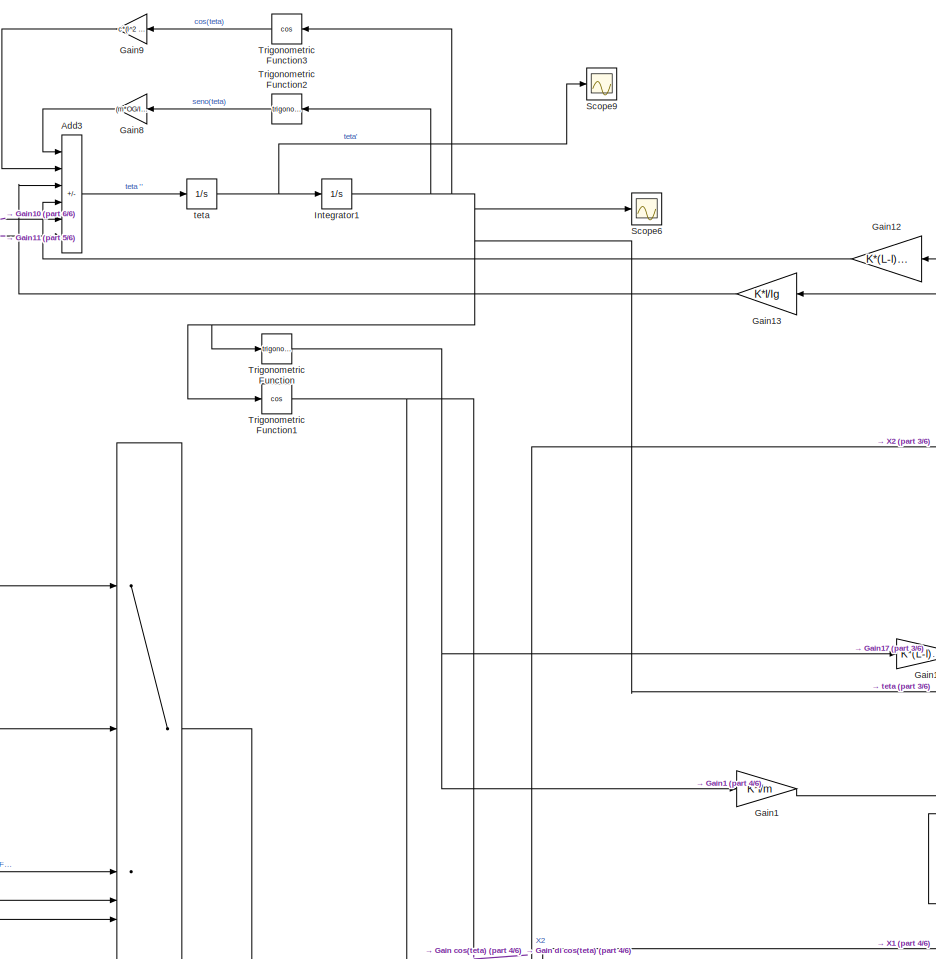
[diagram: root canvas - part 1/6, top center region]
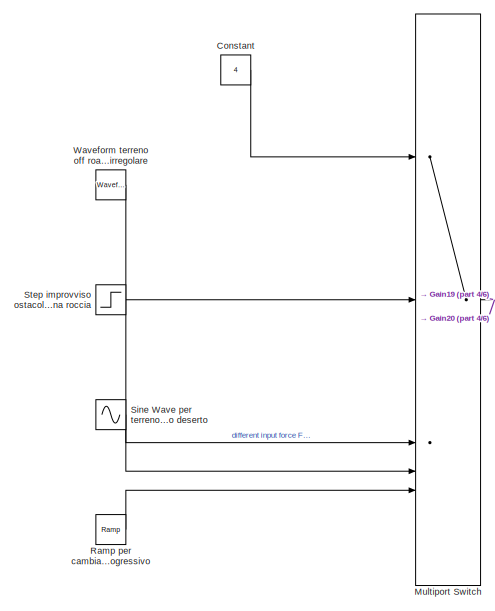
[diagram: root canvas - part 2/6, middle left region]
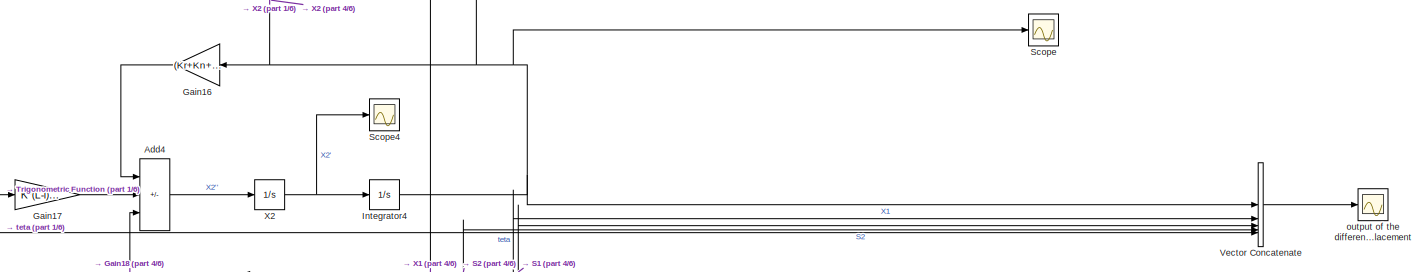
[diagram: root canvas - part 3/6, middle right region]
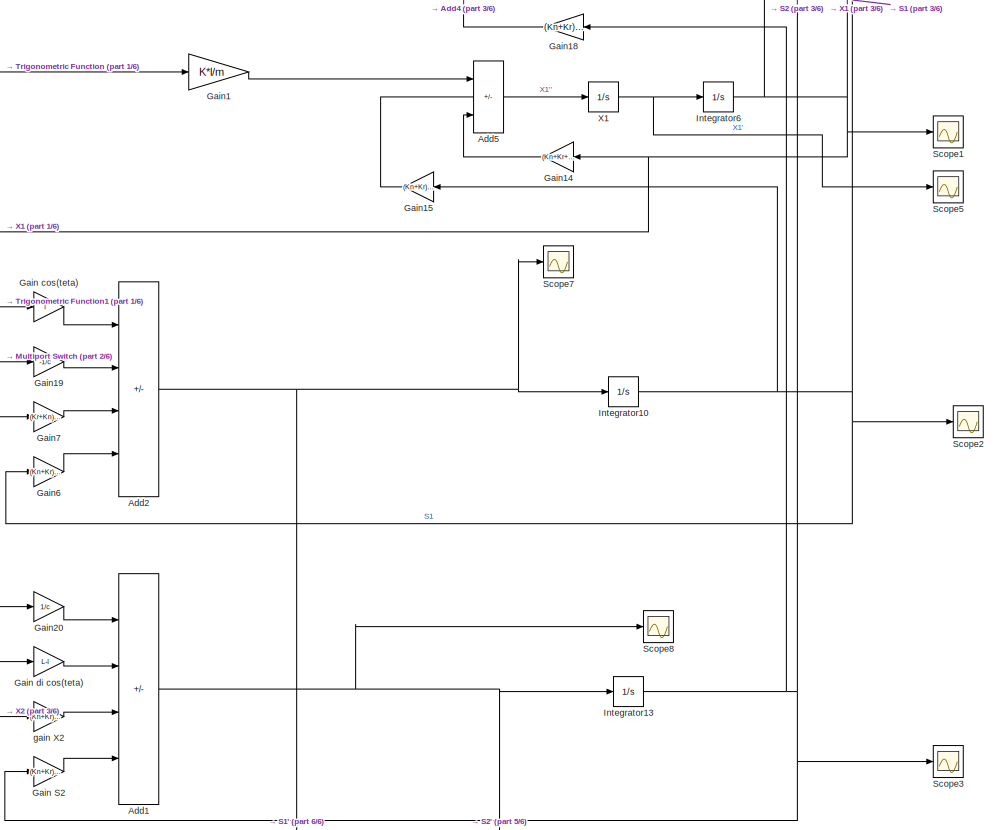
[diagram: root canvas - part 4/6, central region]
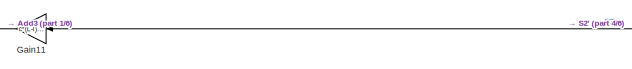
[diagram: root canvas - part 5/6, bottom left region]
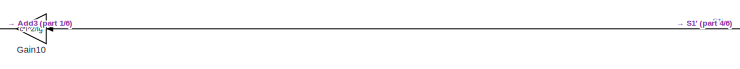
[diagram: root canvas - part 6/6, bottom left region]
MODEL slx_c7bda85f03ab
KIND model
CONFIG AbsTol = auto
CONFIG EnableMultiTasking = off
CONFIG FixedStep = auto
CONFIG MaxStep = auto
CONFIG MinStep = auto
CONFIG RelTol = 1e-10
CONFIG SampleTimeConstraint = Unconstrained
CONFIG SolverName = VariableStepAuto
CONFIG StartTime = 0.0
CONFIG StopTime = 5.0
BLOCK [Sum] Add1
  IconShape = rectangular
  Inputs = +++-
BLOCK [Sum] Add2
  IconShape = rectangular
  Inputs = +++-
BLOCK [Sum] Add3
  IconShape = rectangular
  Inputs = +-++++
BLOCK [Sum] Add4
  IconShape = rectangular
  Inputs = -++
BLOCK [Sum] Add5
  IconShape = rectangular
  Inputs = ++-
BLOCK [Constant] Constant
  Value = 4
BLOCK [Gain] Gain S2
  Gain = (Kn+Kr)/c
BLOCK [Gain] Gain cos(teta)
  Gain = l
BLOCK [Gain] Gain di cos(teta) 
  Gain = L-l
BLOCK [Gain] Gain1
  Gain = K*l/m
BLOCK [Gain] Gain10
  Gain = c*l^2/Ig
BLOCK [Gain] Gain11
  Gain = c*(L-l)^2/Ig
BLOCK [Gain] Gain12
  Gain = K*(L-l)/Ig
BLOCK [Gain] Gain13
  Gain = K*l/Ig
BLOCK [Gain] Gain14
  Gain = (Kn+Kr+K)/m
BLOCK [Gain] Gain15
  Gain = (Kn+Kr)/m
BLOCK [Gain] Gain16
  Gain = (Kr+Kn+K)/m
BLOCK [Gain] Gain17
  Gain = K*(L-l)/m
BLOCK [Gain] Gain18
  Gain = (Kn+Kr)/m
BLOCK [Gain] Gain19
  Gain = -1/c
BLOCK [Gain] Gain20
  Gain = 1/c
BLOCK [Gain] Gain6
  Gain = (Kn+Kr)/c
BLOCK [Gain] Gain7
  Gain = (Kr+Kn)/c
BLOCK [Gain] Gain8
  Gain = (m*OG/Ig) - (K*(L-l)^2/Ig)-(K*l^2/Ig)
BLOCK [Gain] Gain9
  Gain = c*(l^2 +(L-l)^2)/Ig
BLOCK [Integrator] Integrator1
BLOCK [Integrator] Integrator10
BLOCK [Integrator] Integrator13
BLOCK [Integrator] Integrator4
BLOCK [Integrator] Integrator6
BLOCK [MultiPortSwitch] Multiport Switch
  InputSameDT = off
  Inputs = 4
  SaturateOnIntegerOverflow = off
BLOCK [Reference] Ramp per cambiamento di livello terreno progressivo   REF=simulink/Sources/Ramp
  SourceBlock = simulink/Sources/Ramp
  SourceType = Ramp
BLOCK [Scope] Scope
  Floating = off
  NumInputPorts = 1
  ScopeSpecificationString = Simulink.scopes.TimeScopeBlockCfg('CurrentConfiguration', extmgr.ConfigurationSet(extmgr.Configuration('Core','General UI',true),extmgr.Configuration('Core','Source UI',true),extmgr.Configuration('Sources','WiredSimulink',true,'DataLoggingVariableName','ScopeData1','DataLoggingSaveFormat','Array','DataLoggingLimitDataPoints',true,'DataLoggingDecimation','1'),extmgr.Configuration('Visuals','Time Do...<+1675ch>
BLOCK [Scope] Scope1
  Floating = off
  NumInputPorts = 1
  ScopeSpecificationString = Simulink.scopes.TimeScopeBlockCfg('CurrentConfiguration', extmgr.ConfigurationSet(extmgr.Configuration('Core','General UI',true),extmgr.Configuration('Core','Source UI',true),extmgr.Configuration('Sources','WiredSimulink',true,'DataLoggingVariableName','ScopeData2','DataLoggingSaveFormat','Array','DataLoggingLimitDataPoints',true,'DataLoggingDecimation','1'),extmgr.Configuration('Visuals','Time Do...<+1675ch>
BLOCK [Scope] Scope2
  Floating = off
  NumInputPorts = 1
  ScopeSpecificationString = Simulink.scopes.TimeScopeBlockCfg('CurrentConfiguration', extmgr.ConfigurationSet(extmgr.Configuration('Core','General UI',true),extmgr.Configuration('Core','Source UI',true),extmgr.Configuration('Sources','WiredSimulink',true,'DataLoggingVariableName','ScopeData3','DataLoggingSaveFormat','Array','DataLoggingLimitDataPoints',true,'DataLoggingDecimation','1'),extmgr.Configuration('Visuals','Time Do...<+1673ch>
BLOCK [Scope] Scope3
  Floating = off
  NumInputPorts = 1
  ScopeSpecificationString = Simulink.scopes.TimeScopeBlockCfg('CurrentConfiguration', extmgr.ConfigurationSet(extmgr.Configuration('Core','General UI',true),extmgr.Configuration('Core','Source UI',true),extmgr.Configuration('Sources','WiredSimulink',true,'DataLoggingVariableName','ScopeData4','DataLoggingSaveFormat','Array','DataLoggingLimitDataPoints',true,'DataLoggingDecimation','1'),extmgr.Configuration('Visuals','Time Do...<+1671ch>
BLOCK [Scope] Scope4
  Floating = off
  NumInputPorts = 1
  ScopeSpecificationString = Simulink.scopes.TimeScopeBlockCfg('CurrentConfiguration', extmgr.ConfigurationSet(extmgr.Configuration('Core','General UI',true),extmgr.Configuration('Core','Source UI',true),extmgr.Configuration('Sources','WiredSimulink',true,'DataLoggingVariableName','ScopeData1','DataLoggingSaveFormat','Array','DataLoggingLimitDataPoints',true,'DataLoggingDecimation','1'),extmgr.Configuration('Visuals','Time Do...<+1675ch>
BLOCK [Scope] Scope5
  Floating = off
  NumInputPorts = 1
  ScopeSpecificationString = Simulink.scopes.TimeScopeBlockCfg('CurrentConfiguration', extmgr.ConfigurationSet(extmgr.Configuration('Core','General UI',true),extmgr.Configuration('Core','Source UI',true),extmgr.Configuration('Sources','WiredSimulink',true,'DataLoggingVariableName','ScopeData2','DataLoggingSaveFormat','Array','DataLoggingLimitDataPoints',true,'DataLoggingDecimation','1'),extmgr.Configuration('Visuals','Time Do...<+1677ch>
BLOCK [Scope] Scope6
  Floating = off
  NumInputPorts = 1
  ScopeSpecificationString = Simulink.scopes.TimeScopeBlockCfg('CurrentConfiguration', extmgr.ConfigurationSet(extmgr.Configuration('Core','General UI',true),extmgr.Configuration('Core','Source UI',true),extmgr.Configuration('Sources','WiredSimulink',true,'DataLoggingVariableName','ScopeData1','DataLoggingSaveFormat','Array','DataLoggingLimitDataPoints',true,'DataLoggingDecimation','1'),extmgr.Configuration('Visuals','Time Do...<+1650ch>
BLOCK [Scope] Scope7
  Floating = off
  NumInputPorts = 1
  ScopeSpecificationString = Simulink.scopes.TimeScopeBlockCfg('CurrentConfiguration', extmgr.ConfigurationSet(extmgr.Configuration('Core','General UI',true),extmgr.Configuration('Core','Source UI',true),extmgr.Configuration('Sources','WiredSimulink',true,'DataLoggingVariableName','ScopeData4','DataLoggingSaveFormat','Array','DataLoggingLimitDataPoints',true,'DataLoggingDecimation','1'),extmgr.Configuration('Visuals','Time Do...<+1677ch>
BLOCK [Scope] Scope8
  Floating = off
  NumInputPorts = 1
  ScopeSpecificationString = Simulink.scopes.TimeScopeBlockCfg('CurrentConfiguration', extmgr.ConfigurationSet(extmgr.Configuration('Core','General UI',true),extmgr.Configuration('Core','Source UI',true),extmgr.Configuration('Sources','WiredSimulink',true,'DataLoggingVariableName','ScopeData5','DataLoggingSaveFormat','Array','DataLoggingLimitDataPoints',true,'DataLoggingDecimation','1'),extmgr.Configuration('Visuals','Time Do...<+1677ch>
BLOCK [Scope] Scope9
  Floating = off
  NumInputPorts = 1
  ScopeSpecificationString = Simulink.scopes.TimeScopeBlockCfg('CurrentConfiguration', extmgr.ConfigurationSet(extmgr.Configuration('Core','General UI',true),extmgr.Configuration('Core','Source UI',true),extmgr.Configuration('Sources','WiredSimulink',true,'DataLoggingVariableName','ScopeData1','DataLoggingSaveFormat','Array','DataLoggingLimitDataPoints',true,'DataLoggingDecimation','1'),extmgr.Configuration('Visuals','Time Do...<+1654ch>
BLOCK [Sin] Sine Wave per terreno ondulato tipo deserto 
  SampleTime = 0
BLOCK [Step] Step improvviso ostacolo come un buco o una roccia 
  After = 500
  SampleTime = 0
BLOCK [Trigonometry] Trigonometric Function
BLOCK [Trigonometry] Trigonometric Function1
  Operator = cos
BLOCK [Trigonometry] Trigonometric Function2
BLOCK [Trigonometry] Trigonometric Function3
  Operator = cos
BLOCK [Concatenate] Vector Concatenate
  NameLocation = right
  NumInputs = 5
BLOCK [Reference] Waveform terreno off road classico con andamento irregolare   REF=simulink/Sources/Waveform
Generator
  SourceBlock = simulink/Sources/Waveform\nGenerator
  SourceType = WaveformGenerator
BLOCK [Integrator] X1
BLOCK [Integrator] X2
BLOCK [Gain] gain X2
  Gain = (Kn+Kr)/c
BLOCK [Scope] output of the different displacement 
  Floating = off
  NumInputPorts = 1
  ScopeSpecificationString = Simulink.scopes.TimeScopeBlockCfg('CurrentConfiguration', extmgr.ConfigurationSet(extmgr.Configuration('Core','General UI',true),extmgr.Configuration('Core','Source UI',true),extmgr.Configuration('Sources','WiredSimulink',true),extmgr.Configuration('Visuals','Time Domain',true,'SerializedDisplays',{struct('MinYLimReal','-0.01058','MaxYLimReal','0.16182','YLabelReal','','MinYLimMag','0.00000','MaxY...<+2057ch>
BLOCK [Integrator] teta
NET Add1:1 -> Gain11:1, Integrator13:1, Scope8:1
NET Add2:1 -> Gain10:1, Integrator10:1, Scope7:1
LINE Add3:1 -> teta:1
LINE Add4:1 -> X2:1
LINE Add5:1 -> X1:1
LINE Constant:1 -> Multiport Switch:1
LINE Gain S2:1 -> Add1:4
LINE Gain cos(teta):1 -> Add2:1
LINE Gain di cos(teta) :1 -> Add1:2
LINE Gain10:1 -> Add3:5
LINE Gain11:1 -> Add3:6
LINE Gain12:1 -> Add3:4
LINE Gain13:1 -> Add3:3
LINE Gain14:1 -> Add5:3
LINE Gain15:1 -> Add5:2
LINE Gain16:1 -> Add4:1
LINE Gain17:1 -> Add4:2
LINE Gain18:1 -> Add4:3
LINE Gain19:1 -> Add2:2
LINE Gain1:1 -> Add5:1
LINE Gain20:1 -> Add1:1
LINE Gain6:1 -> Add2:4
LINE Gain7:1 -> Add2:3
LINE Gain8:1 -> Add3:1
LINE Gain9:1 -> Add3:2
NET Integrator10:1 -> Gain15:1, Gain6:1, Scope2:1, Vector Concatenate:3
NET Integrator13:1 -> Gain S2:1, Gain18:1, Scope3:1, Vector Concatenate:4
NET Integrator1:1 -> Scope6:1, Trigonometric Function1:1, Trigonometric Function2:1, Trigonometric Function3:1, Trigonometric Function:1, Vector Concatenate:5
NET Integrator4:1 -> Gain12:1, Gain16:1, Scope:1, Vector Concatenate:1, gain X2:1
NET Integrator6:1 -> Gain13:1, Gain14:1, Gain7:1, Scope1:1, Vector Concatenate:2
NET Multiport Switch:1 -> Gain19:1, Gain20:1
LINE Ramp per cambiamento di livello terreno progressivo :1 -> Multiport Switch:5
LINE Sine Wave per terreno ondulato tipo deserto :1 -> Multiport Switch:4
LINE Step improvviso ostacolo come un buco o una roccia :1 -> Multiport Switch:3
NET Trigonometric Function1:1 -> Gain cos(teta):1, Gain di cos(teta) :1
LINE Trigonometric Function2:1 -> Gain8:1
LINE Trigonometric Function3:1 -> Gain9:1
NET Trigonometric Function:1 -> Gain17:1, Gain1:1
LINE Vector Concatenate:1 -> output of the different displacement :1
LINE Waveform terreno off road classico con andamento irregolare :1 -> Multiport Switch:2
NET X1:1 -> Integrator6:1, Scope5:1
NET X2:1 -> Integrator4:1, Scope4:1
LINE gain X2:1 -> Add1:3
NET teta:1 -> Integrator1:1, Scope9:1
note: NET lines group one-source signal fan-out (src -> all destinations, sorted); 1:1 wires keep LINE
